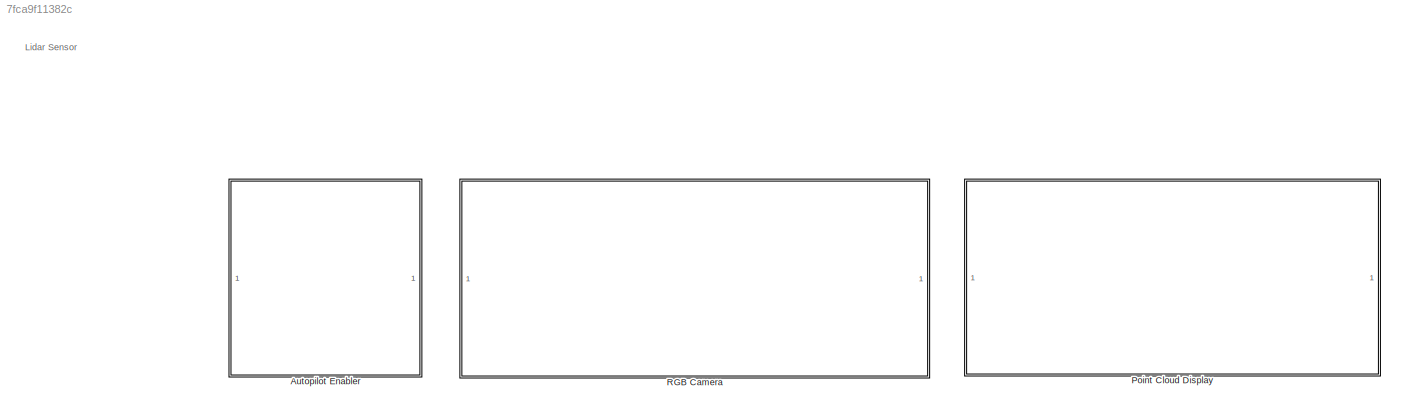
MODEL slx_7fca9f11382c
KIND model
CONFIG AbsTol = auto
CONFIG EnableMultiTasking = on
CONFIG FixedStep = 0.2
CONFIG MaxStep = auto
CONFIG MinStep = auto
CONFIG RelTol = 1e-3
CONFIG SampleTimeConstraint = Unconstrained
CONFIG Solver = FixedStepAuto
CONFIG SolverName = FixedStepAuto
CONFIG StartTime = 0.0
CONFIG StopTime = inf
WORKSPACE source: mxarray member
WORKSPACE SL_ROS_VariableLengthArrays_MaxSizes: object (value not decoded)
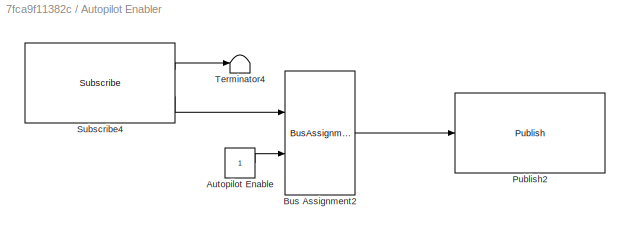
BLOCK [SubSystem] Autopilot Enabler
  Ports = []
  RequestExecContextInheritance = off
BLOCK [Constant] Autopilot Enabler/Autopilot Enable
  OutDataTypeStr = boolean
BLOCK [BusAssignment] Autopilot Enabler/Bus Assignment2
  AssignedSignals = Data
  Ports = [2, 1]
BLOCK [Reference] Autopilot Enabler/Publish2  REF=robotlib/Publish
  Ports = [1]
  SourceBlock = robotlib/Publish
  SourceProductBaseCode = RR
  SourceProductName = ROS Toolbox
  SourceType = ROS Publish
BLOCK [Reference] Autopilot Enabler/Subscribe4  REF=robotlib/Subscribe
  Ports = [0, 2]
  SourceBlock = robotlib/Subscribe
  SourceProductBaseCode = RR
  SourceProductName = ROS Toolbox
  SourceType = ROS Subscribe
BLOCK [Terminator] Autopilot Enabler/Terminator4
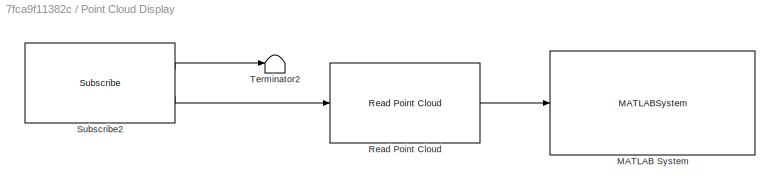
BLOCK [SubSystem] Point Cloud Display
  Ports = []
  RequestExecContextInheritance = off
BLOCK [MATLABSystem] Point Cloud Display/MATLAB System
  MaskDisplay = disp('viewPC');\nport_label('input',1,'xyzpoint');
  MaskType = viewPC
  Ports = [1]
  SimulateUsing = Interpreted execution
  System = viewPC
BLOCK [Reference] Point Cloud Display/Read Point Cloud  REF=robotlib/Read Point Cloud
  Ports = [1, 1]
  SourceBlock = robotlib/Read Point Cloud
  SourceProductBaseCode = RR
  SourceProductName = ROS Toolbox
  SourceType = ros.slros.internal.block.ReadPointCloud
BLOCK [Reference] Point Cloud Display/Subscribe2  REF=robotlib/Subscribe
  Ports = [0, 2]
  SourceBlock = robotlib/Subscribe
  SourceProductBaseCode = RR
  SourceProductName = ROS Toolbox
  SourceType = ROS Subscribe
BLOCK [Terminator] Point Cloud Display/Terminator2
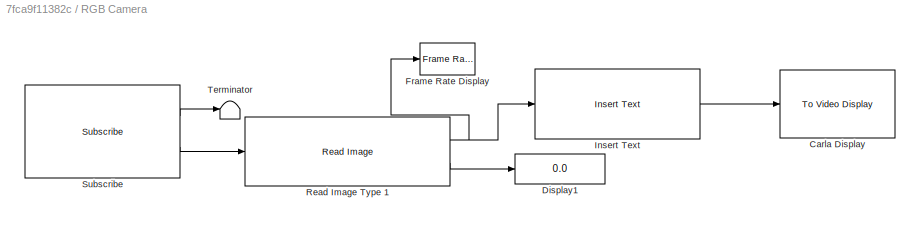
BLOCK [SubSystem] RGB Camera
  Ports = []
  RequestExecContextInheritance = off
BLOCK [Reference] RGB Camera/Carla Display  REF=visionsinks/To Video Display
  Ports = [1]
  SourceBlock = visionsinks/To Video Display
  SourceProductBaseCode = VP
  SourceProductName = Computer Vision Toolbox
  SourceType = To Video Display
BLOCK [Display] RGB Camera/Display1
  Decimation = 1
  Ports = [1]
BLOCK [Reference] RGB Camera/Frame Rate Display  REF=visionsinks/Frame Rate
Display
  Ports = [1]
  SourceBlock = visionsinks/Frame Rate\nDisplay
  SourceProductBaseCode = VP
  SourceProductName = Computer Vision Toolbox
  SourceType = Frame Rate Display
BLOCK [Reference] RGB Camera/Insert Text  REF=visiontextngfix/Insert Text
  Ports = [1, 1]
  SourceBlock = visiontextngfix/Insert Text
  SourceProductBaseCode = VP
  SourceProductName = Computer Vision Toolbox
  SourceType = Insert Text
BLOCK [Reference] RGB Camera/Read Image Type 1  REF=robotlib/Read Image
  Ports = [1, 2]
  SourceBlock = robotlib/Read Image
  SourceProductBaseCode = RO
  SourceProductName = Robotics System Toolbox
  SourceType = ros.slros.internal.block.ReadImage
BLOCK [Reference] RGB Camera/Subscribe  REF=robotlib/Subscribe
  Ports = [0, 2]
  SourceBlock = robotlib/Subscribe
  SourceProductBaseCode = RO
  SourceProductName = Robotics System Toolbox
  SourceType = ROS Subscribe
BLOCK [Terminator] RGB Camera/Terminator
ANNOTATION (root): Lidar Sensor
LINE Autopilot Enabler/Autopilot Enable:1 -> Autopilot Enabler/Bus Assignment2:2
LINE Autopilot Enabler/Bus Assignment2:1 -> Autopilot Enabler/Publish2:1
LINE Autopilot Enabler/Subscribe4:1 -> Autopilot Enabler/Terminator4:1
LINE Autopilot Enabler/Subscribe4:2 -> Autopilot Enabler/Bus Assignment2:1
LINE Point Cloud Display/Read Point Cloud:1 -> Point Cloud Display/MATLAB System:1
LINE Point Cloud Display/Subscribe2:1 -> Point Cloud Display/Terminator2:1
LINE Point Cloud Display/Subscribe2:2 -> Point Cloud Display/Read Point Cloud:1
LINE RGB Camera/Insert Text:1 -> RGB Camera/Carla Display:1
NET RGB Camera/Read Image Type 1:1 -> RGB Camera/Frame Rate Display:1, RGB Camera/Insert Text:1
LINE RGB Camera/Read Image Type 1:2 -> RGB Camera/Display1:1
LINE RGB Camera/Subscribe:1 -> RGB Camera/Terminator:1
LINE RGB Camera/Subscribe:2 -> RGB Camera/Read Image Type 1:1
note: NET lines group one-source signal fan-out (src -> all destinations, sorted); 1:1 wires keep LINE
